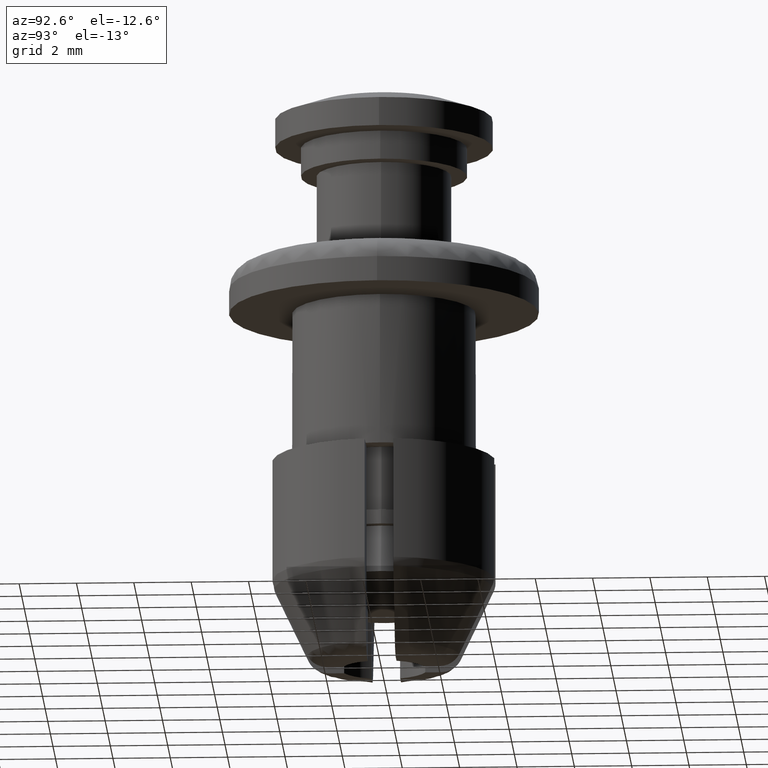
[diagram: clean part render]
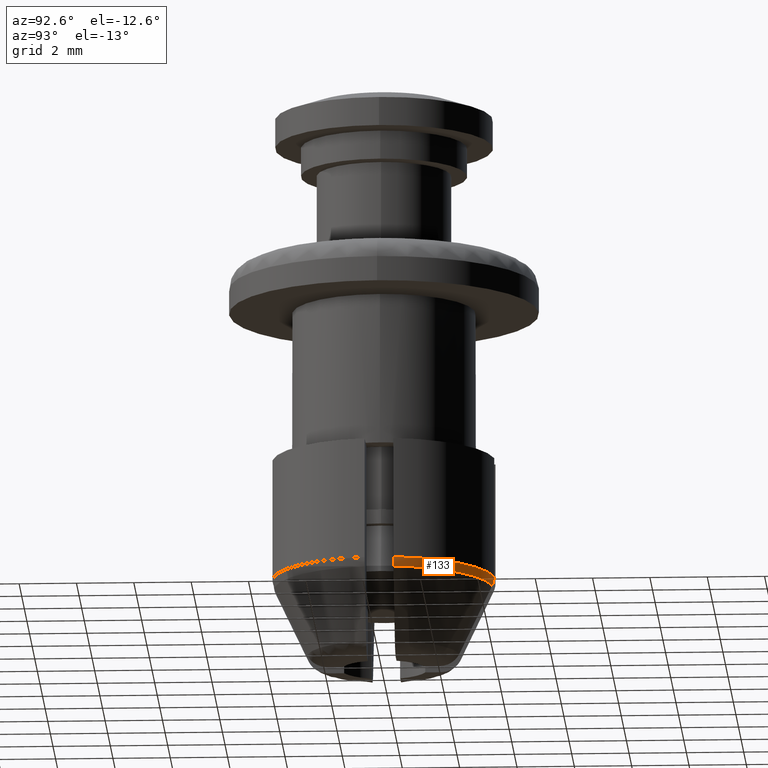
[diagram: same view with one face highlighted and labeled with its STEP entity id]
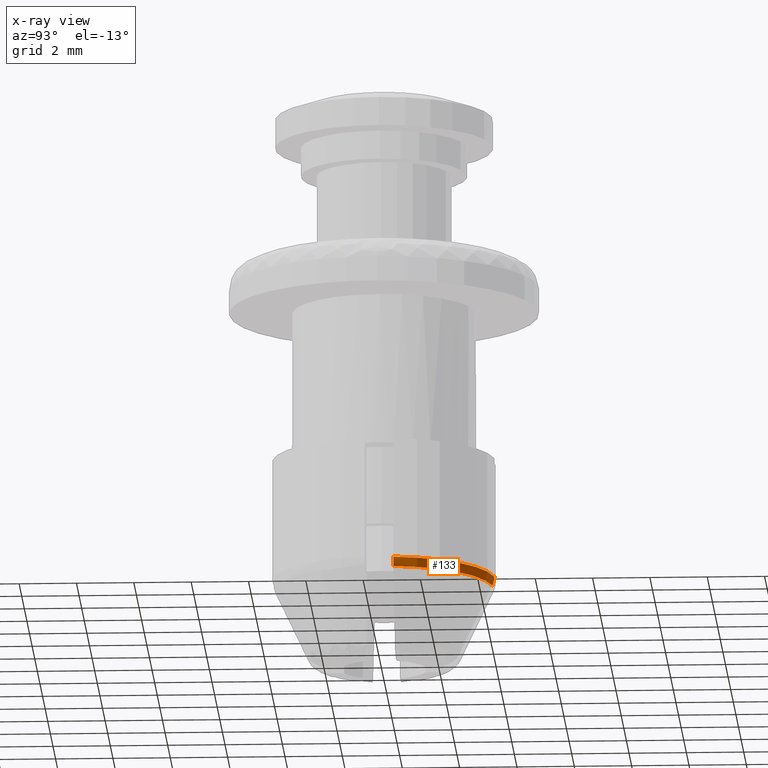
[diagram: x-ray of the same camera — body ghosted, the highlighted face saturated]
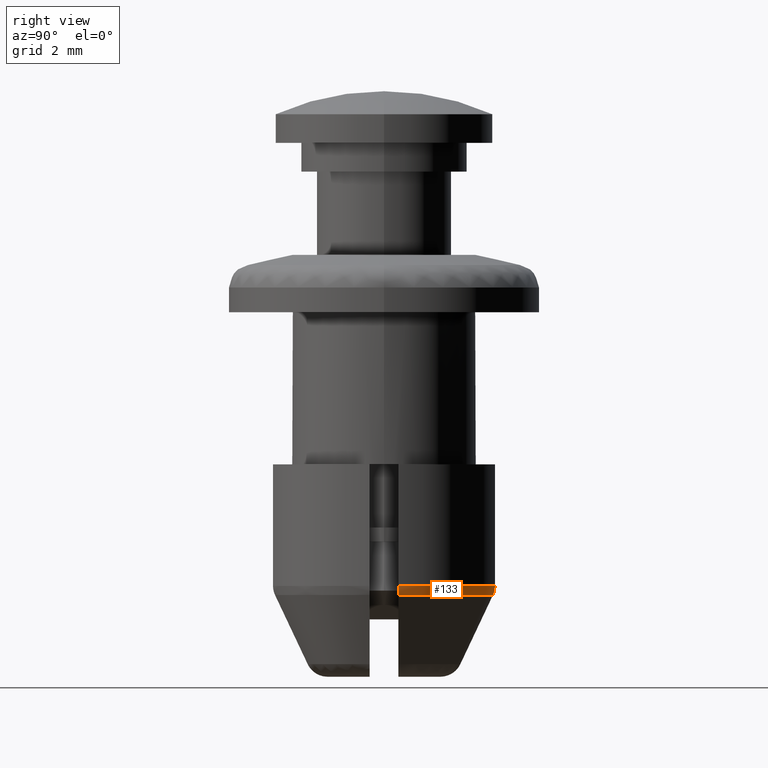
[diagram: same view with one face highlighted and labeled with its STEP entity id]
A machine part, auxiliary view. The second image highlights one B-rep face of the part: STEP entity #133.
The next image is the same camera in x-ray: the body ghosted, the highlighted face saturated — about 0% of this face is hidden behind the body in this view.
A second angle (right view) of the same face is appended — the face is thin or edge-on in the first view.
In plain terms, the highlighted face is a freeform B-spline surface patch.
Its self-contained STEP definition (entity closure, byte-faithful):
#133=ADVANCED_FACE('',(#402),#401,.T.);
#401=( BOUNDED_SURFACE() B_SPLINE_SURFACE( 2,2,((#1119,#1120,#1121),(#1122,#1123,#1124),(#1125,#1126,#1127)), .UNSPECIFIED.,.F.,.F.,.F.) B_SPLINE_SURFACE_WITH_KNOTS((3,3),(3,3),(-3.30176978706E-04,4.38582884602E-01),(5.42606930735E-02,1.35767687394E+00), .UNSPECIFIED. ) GEOMETRIC_REPRESENTATION_ITEM() RATIONAL_B_SPLINE_SURFACE(((9.82335187932E-01,7.78648103087E-01,9.82335003966E-01),(9.27163136530E-01,7.34915970007E-01,9.27162962896E-01),(9.18230011025E-01,7.27835127018E-01,9.18229839065E-01))) REPRESENTATION_ITEM('') SURFACE() );
#402=FACE_OUTER_BOUND('',#1128,.T.);
#1119=CARTESIAN_POINT('',(3.86721991546E+00,5.04589023130E-01,-1.15338826065E+01));
#1120=CARTESIAN_POINT('',(3.47910903044E+00,3.47910902880E+00,-1.15338826065E+01));
#1121=CARTESIAN_POINT('',(5.04589024954E-01,3.86721991522E+00,-1.15338826065E+01));
#1122=CARTESIAN_POINT('',(3.86727438323E+00,5.04596130002E-01,-1.17002462865E+01));
#1123=CARTESIAN_POINT('',(3.47915803187E+00,3.47915803023E+00,-1.17002462865E+01));
#1124=CARTESIAN_POINT('',(5.04596131826E-01,3.86727438299E+00,-1.17002462865E+01));
#1125=CARTESIAN_POINT('',(3.79751032450E+00,4.95493420818E-01,-1.18510010338E+01));
#1126=CARTESIAN_POINT('',(3.41639543444E+00,3.41639543283E+00,-1.18510010338E+01));
#1127=CARTESIAN_POINT('',(4.95493422609E-01,3.79751032427E+00,-1.18510010338E+01));
#1128=EDGE_LOOP('',(#1654,#1655,#1656,#1657));
#1654=ORIENTED_EDGE('',*,*,#2019,.F.);
#1655=ORIENTED_EDGE('',*,*,#2020,.F.);
#1656=ORIENTED_EDGE('',*,*,#2021,.F.);
#1657=ORIENTED_EDGE('',*,*,#2010,.T.);
#2010=EDGE_CURVE('',#2579,#2572,#2580,.T.);
#2019=EDGE_CURVE('',#2638,#2572,#2639,.T.);
#2020=EDGE_CURVE('',#2645,#2638,#2646,.T.);
#2021=EDGE_CURVE('',#2579,#2645,#2652,.T.);
#2572=VERTEX_POINT('',#3717);
#2579=VERTEX_POINT('',#3721);
#2580=CIRCLE('',#3725,3.90000000000E+00);
#2638=VERTEX_POINT('',#3763);
#2639=(BOUNDED_CURVE() B_SPLINE_CURVE(3,(#3764,#3765,#3766,#3767,#3768,#3769),.UNSPECIFIED.,.F.,.F.) B_SPLINE_CURVE_WITH_KNOTS((4,2,4),(1.86324909117E-03,2.02641197676E-03,2.18957486235E-03),.UNSPECIFIED.) CURVE() GEOMETRIC_REPRESENTATION_ITEM() RATIONAL_B_SPLINE_CURVE((1.00000000000E+00,1.00000000000E+00,1.00000000000E+00,1.00000000000E+00,1.00000000000E+00,1.00000000000E+00)) REPRESENTATION_ITEM('') );
#2645=VERTEX_POINT('',#3770);
#2646=CIRCLE('',#3774,3.82970000000E+00);
#2652=(BOUNDED_CURVE() B_SPLINE_CURVE(3,(#3775,#3776,#3777,#3778,#3779,#3780),.UNSPECIFIED.,.F.,.F.) B_SPLINE_CURVE_WITH_KNOTS((4,2,4),(2.48735765265E-03,2.65016018147E-03,2.81296271030E-03),.UNSPECIFIED.) CURVE() GEOMETRIC_REPRESENTATION_ITEM() RATIONAL_B_SPLINE_CURVE((1.00000000000E+00,1.00000000000E+00,1.00000000000E+00,1.00000000000E+00,1.00000000000E+00,1.00000000000E+00)) REPRESENTATION_ITEM('') );
#3717=CARTESIAN_POINT('',(3.86781592116E+00,5.00000000000E-01,-1.15339000000E+01));
#3721=CARTESIAN_POINT('',(5.00000000000E-01,3.86781592116E+00,-1.15339000000E+01));
#3722=CARTESIAN_POINT('',(0.00000000000E+00,0.00000000000E+00,-1.15339000000E+01));
#3723=DIRECTION('',(0.00000000000E+00,0.00000000000E+00,-1.00000000000E+00));
#3724=DIRECTION('',(1.00000000000E+00,-0.00000000000E+00,-0.00000000000E+00));
#3725=AXIS2_PLACEMENT_3D('',#3722,#3723,#3724);
#3763=CARTESIAN_POINT('',(3.79692007949E+00,5.00000000000E-01,-1.18510000000E+01));
#3764=CARTESIAN_POINT('',(3.79692007949E+00,5.00000000000E-01,-1.18510000000E+01));
#3765=CARTESIAN_POINT('',(3.82012529799E+00,5.00000000000E-01,-1.18017021919E+01));
#3766=CARTESIAN_POINT('',(3.83783946449E+00,5.00000000000E-01,-1.17502207867E+01));
#3767=CARTESIAN_POINT('',(3.86189560485E+00,5.00000000000E-01,-1.16427356578E+01));
#3768=CARTESIAN_POINT('',(3.86783276955E+00,5.00000000000E-01,-1.15883343377E+01));
#3769=CARTESIAN_POINT('',(3.86781592116E+00,5.00000000000E-01,-1.15339000000E+01));
#3770=CARTESIAN_POINT('',(5.00000000000E-01,3.79692007949E+00,-1.18510000000E+01));
#3771=CARTESIAN_POINT('',(0.00000000000E+00,0.00000000000E+00,-1.18510000000E+01));
#3772=DIRECTION('',(0.00000000000E+00,0.00000000000E+00,-1.00000000000E+00));
#3773=DIRECTION('',(1.00000000000E+00,-0.00000000000E+00,-0.00000000000E+00));
#3774=AXIS2_PLACEMENT_3D('',#3771,#3772,#3773);
#3775=CARTESIAN_POINT('',(5.00000000000E-01,3.86781592116E+00,-1.15339000000E+01));
#3776=CARTESIAN_POINT('',(5.00000000000E-01,3.86783282926E+00,-1.15885272701E+01));
#3777=CARTESIAN_POINT('',(5.00000000000E-01,3.86173506569E+00,-1.16434174814E+01));
#3778=CARTESIAN_POINT('',(5.00000000000E-01,3.83804634033E+00,-1.17493318571E+01));
#3779=CARTESIAN_POINT('',(5.00000000000E-01,3.82019508988E+00,-1.18015539241E+01));
#3780=CARTESIAN_POINT('',(5.00000000000E-01,3.79692007949E+00,-1.18510000000E+01));